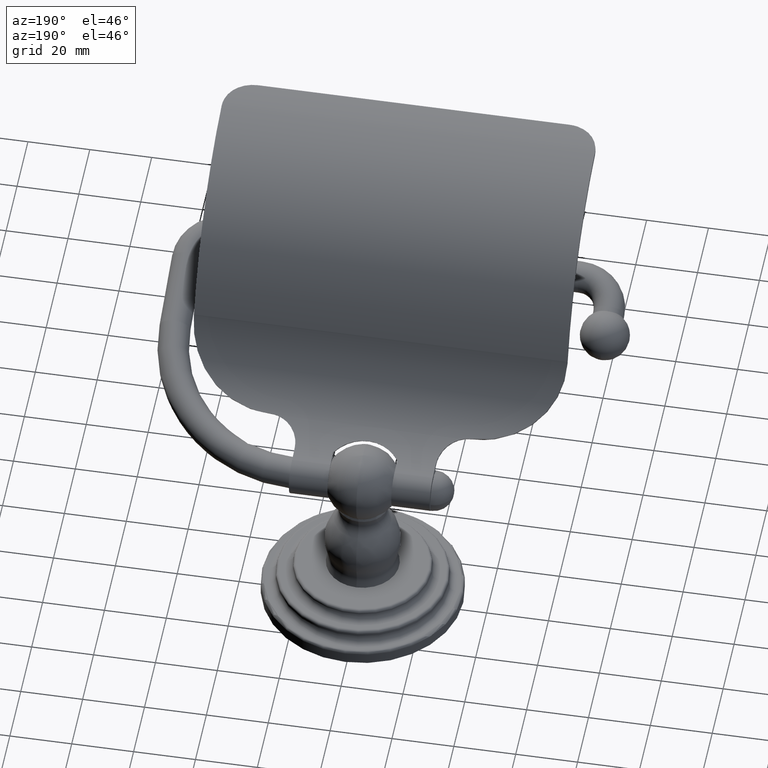
[diagram: clean part render]
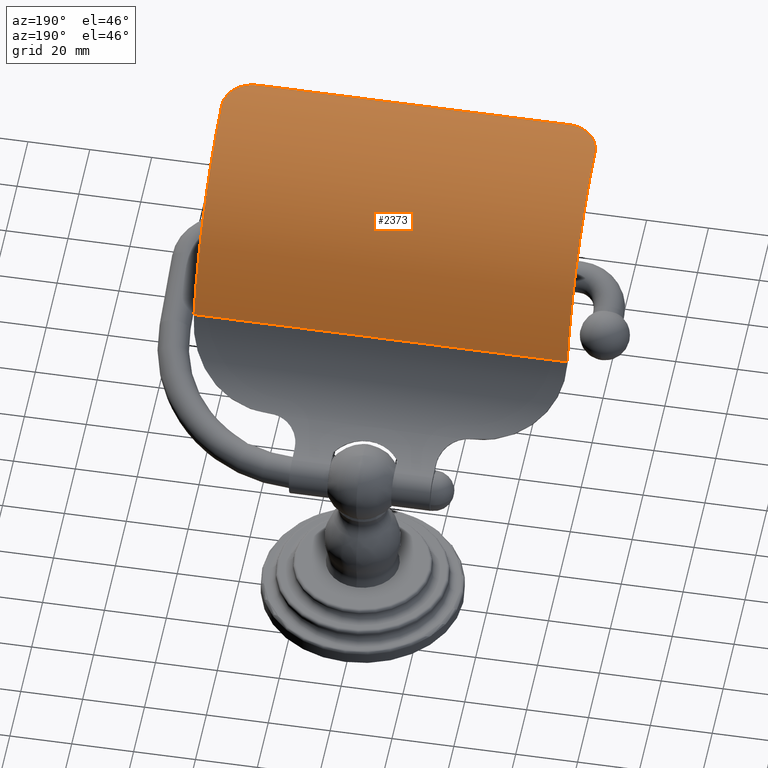
[diagram: same view with one face highlighted and labeled with its STEP entity id]
A machine part, auxiliary view. The second image highlights one B-rep face of the part: STEP entity #2373.
In plain terms, the highlighted cylindrical surface (partial cylindrical patch) has radius 64.77 mm, axis along (-1, 0, 0).
Its self-contained STEP definition (entity closure, byte-faithful):
#664=DIRECTION('',(-1.E0,0.E0,0.E0));
#665=VECTOR('',#664,4.75E0);
#666=CARTESIAN_POINT('',(2.375E0,-1.277418248909E0,3.233149010093E0));
#667=LINE('',#666,#665);
#801=CARTESIAN_POINT('',(2.375E0,-3.702053800207E0,2.443438655988E0));
#802=DIRECTION('',(-1.E0,0.E0,0.E0));
#803=DIRECTION('',(0.E0,1.641489353281E-1,9.864355665884E-1));
#804=AXIS2_PLACEMENT_3D('',#801,#802,#803);
#829=CARTESIAN_POINT('',(1.981E0,-3.677156246144E0,4.993317106386E0));
#830=CARTESIAN_POINT('',(1.988395599327E0,-3.677156246144E0,4.993317106386E0));
#831=CARTESIAN_POINT('',(2.003167066886E0,-3.676740759994E0,4.993313100328E0));
#832=CARTESIAN_POINT('',(2.025313491907E0,-3.674866809E0,4.993294115836E0));
#833=CARTESIAN_POINT('',(2.047303889799E0,-3.671748415683E0,4.993259460832E0));
#834=CARTESIAN_POINT('',(2.069032557240E0,-3.667409585114E0,4.993204894855E0));
#835=CARTESIAN_POINT('',(2.090533723221E0,-3.661843305865E0,4.993124078189E0));
#836=CARTESIAN_POINT('',(2.111693603486E0,-3.655071282419E0,4.993009330696E0));
#837=CARTESIAN_POINT('',(2.132395511411E0,-3.647136024709E0,4.992851944059E0));
#838=CARTESIAN_POINT('',(2.152614479444E0,-3.638053187148E0,4.992641463288E0));
#839=CARTESIAN_POINT('',(2.172321529385E0,-3.627831700379E0,4.992365834188E0));
#840=CARTESIAN_POINT('',(2.191403632512E0,-3.616527241451E0,4.992013106648E0));
#841=CARTESIAN_POINT('',(2.209768452119E0,-3.604205932558E0,4.991571457658E0));
#842=CARTESIAN_POINT('',(2.227446339523E0,-3.590849684153E0,4.991025301852E0));
#843=CARTESIAN_POINT('',(2.244340636999E0,-3.576524516277E0,4.990361368673E0));
#844=CARTESIAN_POINT('',(2.260360832006E0,-3.561316665700E0,4.989568030156E0));
#845=CARTESIAN_POINT('',(2.275494367551E0,-3.545248580504E0,4.988630817003E0));
#846=CARTESIAN_POINT('',(2.289718988394E0,-3.528341074078E0,4.987534587681E0));
#847=CARTESIAN_POINT('',(2.302956218099E0,-3.510685689658E0,4.986269092906E0));
#848=CARTESIAN_POINT('',(2.315147362072E0,-3.492378749579E0,4.984826677596E0));
#849=CARTESIAN_POINT('',(2.326317123755E0,-3.473388091359E0,4.983190072961E0));
#850=CARTESIAN_POINT('',(2.336405764097E0,-3.453803704203E0,4.981352032288E0));
#851=CARTESIAN_POINT('',(2.345364028153E0,-3.433733775839E0,4.979309963347E0));
#852=CARTESIAN_POINT('',(2.353189072037E0,-3.413197968624E0,4.977054241843E0));
#853=CARTESIAN_POINT('',(2.359867530624E0,-3.392217556230E0,4.974575387673E0));
#854=CARTESIAN_POINT('',(2.365359890159E0,-3.370900333512E0,4.971875554815E0));
#855=CARTESIAN_POINT('',(2.369645212255E0,-3.349351923844E0,4.968960618216E0));
#856=CARTESIAN_POINT('',(2.372729608788E0,-3.327529848900E0,4.965817642149E0));
#857=CARTESIAN_POINT('',(2.374586883362E0,-3.305531346207E0,4.962453484858E0));
#858=CARTESIAN_POINT('',(2.375E0,-3.290835978863E0,4.960074426760E0));
#859=CARTESIAN_POINT('',(2.375E0,-3.283474015121E0,4.958849350789E0));
#861=DIRECTION('',(-1.E0,0.E0,0.E0));
#862=VECTOR('',#861,3.962E0);
#863=CARTESIAN_POINT('',(1.981E0,-3.677156246144E0,4.993317106386E0));
#864=LINE('',#863,#862);
#865=CARTESIAN_POINT('',(-2.375E0,-3.283474015121E0,4.958849350789E0));
#866=CARTESIAN_POINT('',(-2.375E0,-3.290835978861E0,4.960074426760E0));
#867=CARTESIAN_POINT('',(-2.374586883363E0,-3.305531346168E0,4.962453484852E0));
#868=CARTESIAN_POINT('',(-2.372729608800E0,-3.327529848745E0,4.965817642125E0));
#869=CARTESIAN_POINT('',(-2.369645212330E0,-3.349351923385E0,4.968960618151E0));
#870=CARTESIAN_POINT('',(-2.365359890260E0,-3.370900333076E0,4.971875554759E0));
#871=CARTESIAN_POINT('',(-2.359867530730E0,-3.392217555871E0,4.974575387630E0));
#872=CARTESIAN_POINT('',(-2.353189072193E0,-3.413197968133E0,4.977054241785E0));
#873=CARTESIAN_POINT('',(-2.345364028682E0,-3.433733774557E0,4.979309963211E0));
#874=CARTESIAN_POINT('',(-2.336405764373E0,-3.453803703658E0,4.981352032236E0));
#875=CARTESIAN_POINT('',(-2.326317124088E0,-3.473388090730E0,4.983190072903E0));
#876=CARTESIAN_POINT('',(-2.315147362805E0,-3.492378748395E0,4.984826677498E0));
#877=CARTESIAN_POINT('',(-2.302956218888E0,-3.510685688552E0,4.986269092824E0));
#878=CARTESIAN_POINT('',(-2.289718988954E0,-3.528341073389E0,4.987534587635E0));
#879=CARTESIAN_POINT('',(-2.275494368219E0,-3.545248579711E0,4.988630816952E0));
#880=CARTESIAN_POINT('',(-2.260360833926E0,-3.561316663772E0,4.989568030050E0));
#881=CARTESIAN_POINT('',(-2.244340637830E0,-3.576524515568E0,4.990361368640E0));
#882=CARTESIAN_POINT('',(-2.227446340404E0,-3.590849683424E0,4.991025301819E0));
#883=CARTESIAN_POINT('',(-2.209768453863E0,-3.604205931300E0,4.991571457609E0));
#884=CARTESIAN_POINT('',(-2.191403634401E0,-3.616527240272E0,4.992013106610E0));
#885=CARTESIAN_POINT('',(-2.172321530503E0,-3.627831699781E0,4.992365834171E0));
#886=CARTESIAN_POINT('',(-2.152614480644E0,-3.638053186524E0,4.992641463272E0));
#887=CARTESIAN_POINT('',(-2.132395514853E0,-3.647136023278E0,4.992851944029E0));
#888=CARTESIAN_POINT('',(-2.111693604732E0,-3.655071282024E0,4.993009330690E0));
#889=CARTESIAN_POINT('',(-2.090533724228E0,-3.661843305562E0,4.993124078184E0));
#890=CARTESIAN_POINT('',(-2.069032558729E0,-3.667409584765E0,4.993204894850E0));
#891=CARTESIAN_POINT('',(-2.047303891394E0,-3.671748415423E0,4.993259460829E0));
#892=CARTESIAN_POINT('',(-2.025313492409E0,-3.674866808960E0,4.993294115836E0));
#893=CARTESIAN_POINT('',(-2.003167067001E0,-3.676740759991E0,4.993313100328E0));
#894=CARTESIAN_POINT('',(-1.988395599323E0,-3.677156246144E0,4.993317106386E0));
#895=CARTESIAN_POINT('',(-1.981E0,-3.677156246144E0,4.993317106386E0));
#977=CARTESIAN_POINT('',(-2.375E0,-3.702053800207E0,2.443438655988E0));
#978=DIRECTION('',(-1.E0,0.E0,0.E0));
#979=DIRECTION('',(0.E0,1.641489353281E-1,9.864355665884E-1));
#980=AXIS2_PLACEMENT_3D('',#977,#978,#979);
#1574=CARTESIAN_POINT('',(2.375E0,-1.277418248909E0,3.233149010093E0));
#1575=CARTESIAN_POINT('',(-2.375E0,-1.277418248909E0,3.233149010093E0));
#1576=VERTEX_POINT('',#1574);
#1577=VERTEX_POINT('',#1575);
#1602=CARTESIAN_POINT('',(2.375E0,-3.283474015121E0,4.958849350789E0));
#1603=VERTEX_POINT('',#1602);
#1604=CARTESIAN_POINT('',(-2.375E0,-3.283474015121E0,4.958849350789E0));
#1605=VERTEX_POINT('',#1604);
#1625=VERTEX_POINT('',#895);
#1631=CARTESIAN_POINT('',(1.981E0,-3.677156246144E0,4.993317106386E0));
#1632=VERTEX_POINT('',#1631);
#2356=CARTESIAN_POINT('',(2.375E0,-3.702053800207E0,2.443438655988E0));
#2357=DIRECTION('',(-1.E0,0.E0,0.E0));
#2358=DIRECTION('',(0.E0,6.427876096865E-1,7.660444431190E-1));
#2359=AXIS2_PLACEMENT_3D('',#2356,#2357,#2358);
#2360=CYLINDRICAL_SURFACE('',#2359,2.55E0);
#2361=ORIENTED_EDGE('',*,*,#2344,.F.);
#2363=ORIENTED_EDGE('',*,*,#2362,.F.);
#2365=ORIENTED_EDGE('',*,*,#2364,.T.);
#2367=ORIENTED_EDGE('',*,*,#2366,.F.);
#2369=ORIENTED_EDGE('',*,*,#2368,.T.);
#2370=ORIENTED_EDGE('',*,*,#2305,.F.);
#2371=EDGE_LOOP('',(#2361,#2363,#2365,#2367,#2369,#2370));
#2372=FACE_OUTER_BOUND('',#2371,.F.);
#2373=ADVANCED_FACE('',(#2372),#2360,.T.);
#805=CIRCLE('',#804,2.55E0);
#860=B_SPLINE_CURVE_WITH_KNOTS('',3,(#829,#830,#831,#832,#833,#834,#835,#836,
#837,#838,#839,#840,#841,#842,#843,#844,#845,#846,#847,#848,#849,#850,#851,#852,
#853,#854,#855,#856,#857,#858,#859),.UNSPECIFIED.,.F.,.F.,(4,1,1,1,1,1,1,1,1,1,
1,1,1,1,1,1,1,1,1,1,1,1,1,1,1,1,1,1,4),(0.E0,3.571428571429E-2,
7.142857142857E-2,1.071428571429E-1,1.428571428571E-1,1.785714285714E-1,
2.142857142857E-1,2.5E-1,2.857142857143E-1,3.214285714286E-1,3.571428571429E-1,
3.928571428571E-1,4.285714285714E-1,4.642857142857E-1,5.E-1,5.357142857143E-1,
5.714285714286E-1,6.071428571429E-1,6.428571428571E-1,6.785714285714E-1,
7.142857142857E-1,7.5E-1,7.857142857143E-1,8.214285714286E-1,8.571428571429E-1,
8.928571428571E-1,9.285714285714E-1,9.642857142857E-1,1.E0),.UNSPECIFIED.);
#896=B_SPLINE_CURVE_WITH_KNOTS('',3,(#865,#866,#867,#868,#869,#870,#871,#872,
#873,#874,#875,#876,#877,#878,#879,#880,#881,#882,#883,#884,#885,#886,#887,#888,
#889,#890,#891,#892,#893,#894,#895),.UNSPECIFIED.,.F.,.F.,(4,1,1,1,1,1,1,1,1,1,
1,1,1,1,1,1,1,1,1,1,1,1,1,1,1,1,1,1,4),(0.E0,3.571428571429E-2,
7.142857142857E-2,1.071428571429E-1,1.428571428571E-1,1.785714285714E-1,
2.142857142857E-1,2.5E-1,2.857142857143E-1,3.214285714286E-1,3.571428571429E-1,
3.928571428571E-1,4.285714285714E-1,4.642857142857E-1,5.E-1,5.357142857143E-1,
5.714285714286E-1,6.071428571429E-1,6.428571428571E-1,6.785714285714E-1,
7.142857142857E-1,7.5E-1,7.857142857143E-1,8.214285714286E-1,8.571428571429E-1,
8.928571428571E-1,9.285714285714E-1,9.642857142857E-1,1.E0),.UNSPECIFIED.);
#981=CIRCLE('',#980,2.55E0);
#2305=EDGE_CURVE('',#1576,#1577,#667,.T.);
#2344=EDGE_CURVE('',#1603,#1576,#805,.T.);
#2362=EDGE_CURVE('',#1632,#1603,#860,.T.);
#2364=EDGE_CURVE('',#1632,#1625,#864,.T.);
#2366=EDGE_CURVE('',#1605,#1625,#896,.T.);
#2368=EDGE_CURVE('',#1605,#1577,#981,.T.);